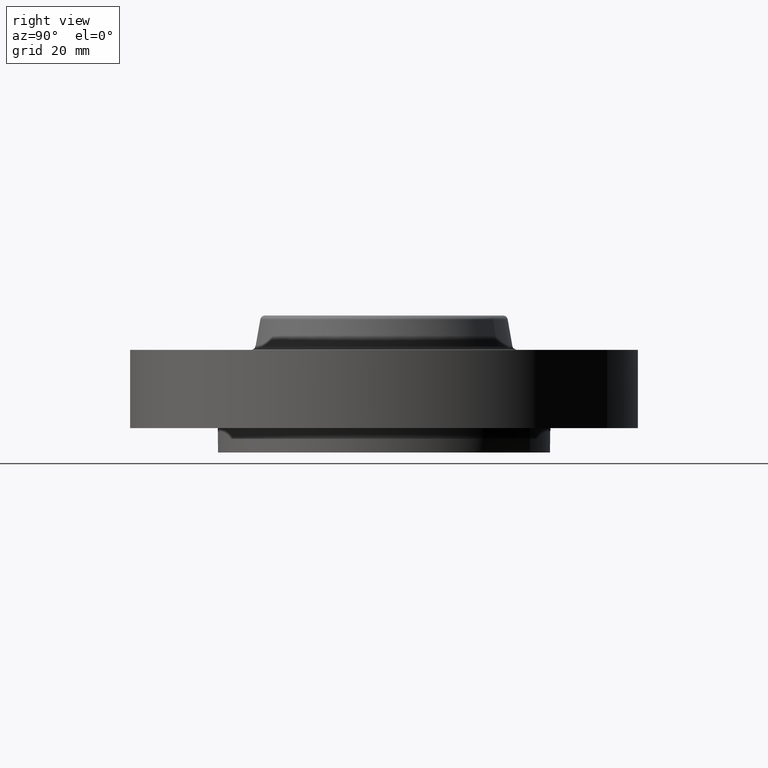
[diagram: clean part render]
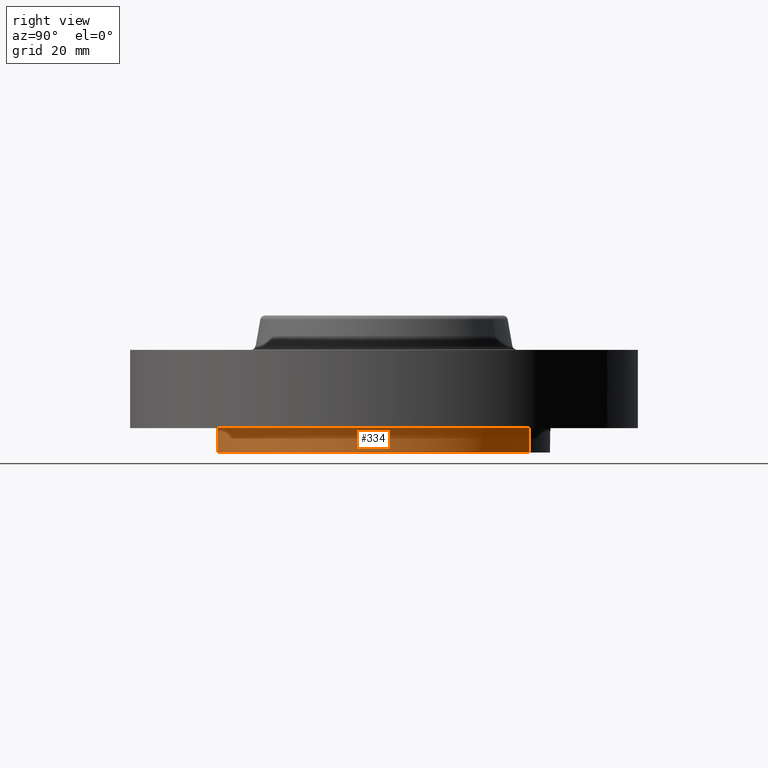
[diagram: same view with one face highlighted and labeled with its STEP entity id]
A machine part, right view. The second image highlights one B-rep face of the part: STEP entity #334.
In plain terms, the highlighted cylindrical surface (partial cylindrical patch) has radius 53.975 mm, axis along (0, 0, -1).
Its self-contained STEP definition (entity closure, byte-faithful):
#202=AXIS2_PLACEMENT_3D('Circle Axis2P3D',#200,#201,$) ;
#231=AXIS2_PLACEMENT_3D('Cylinder Axis2P3D',#228,#229,#230) ;
#293=AXIS2_PLACEMENT_3D('Circle Axis2P3D',#291,#292,$) ;
#300=AXIS2_PLACEMENT_3D('Circle Axis2P3D',#298,#299,$) ;
#307=AXIS2_PLACEMENT_3D('Circle Axis2P3D',#305,#306,$) ;
#314=AXIS2_PLACEMENT_3D('Circle Axis2P3D',#312,#313,$) ;
#321=AXIS2_PLACEMENT_3D('Circle Axis2P3D',#319,#320,$) ;
#195=CARTESIAN_POINT('Vertex',(-1.01877926954,-1.86486294402,-0.313000000001)) ;
#197=CARTESIAN_POINT('Vertex',(1.01877926954,1.86486294402,-0.313000000001)) ;
#200=CARTESIAN_POINT('Axis2P3D Location',(0.,0.,-0.313000000001)) ;
#228=CARTESIAN_POINT('Axis2P3D Location',(0.,0.,0.563500000002)) ;
#233=CARTESIAN_POINT('Line Origine',(-1.01877926954,-1.86486294402,-0.156500000001)) ;
#237=CARTESIAN_POINT('Vertex',(-1.01877926954,-1.86486294402,2.79741234551E-016)) ;
#272=CARTESIAN_POINT('Vertex',(1.01877926954,1.86486294402,2.79741234551E-016)) ;
#275=CARTESIAN_POINT('Line Origine',(1.01877926954,1.86486294402,-0.156500000001)) ;
#291=CARTESIAN_POINT('Axis2P3D Location',(0.,0.,2.79741234551E-016)) ;
#295=CARTESIAN_POINT('Vertex',(1.50260191003,1.50260191003,0.)) ;
#298=CARTESIAN_POINT('Axis2P3D Location',(0.,0.,2.79741234551E-016)) ;
#302=CARTESIAN_POINT('Vertex',(2.12500000001,-2.79741234551E-016,0.)) ;
#305=CARTESIAN_POINT('Axis2P3D Location',(0.,0.,2.79741234551E-016)) ;
#309=CARTESIAN_POINT('Vertex',(1.50260191003,-1.50260191003,0.)) ;
#312=CARTESIAN_POINT('Axis2P3D Location',(0.,0.,2.79741234551E-016)) ;
#316=CARTESIAN_POINT('Vertex',(2.72746669247E-017,-2.12500000001,0.)) ;
#319=CARTESIAN_POINT('Axis2P3D Location',(0.,0.,2.79741234551E-016)) ;
#201=DIRECTION('Axis2P3D Direction',(0.,0.,-0.0393700787402)) ;
#229=DIRECTION('Axis2P3D Direction',(0.,0.,-0.0393700787402)) ;
#230=DIRECTION('Axis2P3D XDirection',(0.0188750212049,0.0345504945626,0.)) ;
#234=DIRECTION('Vector Direction',(0.,0.,-0.0393700787402)) ;
#276=DIRECTION('Vector Direction',(0.,0.,-0.0393700787402)) ;
#292=DIRECTION('Axis2P3D Direction',(0.,0.,-0.0393700787402)) ;
#299=DIRECTION('Axis2P3D Direction',(0.,0.,-0.0393700787402)) ;
#306=DIRECTION('Axis2P3D Direction',(0.,0.,-0.0393700787402)) ;
#313=DIRECTION('Axis2P3D Direction',(0.,0.,-0.0393700787402)) ;
#320=DIRECTION('Axis2P3D Direction',(0.,0.,-0.0393700787402)) ;
#235=VECTOR('Line Direction',#234,0.0393700787402) ;
#277=VECTOR('Line Direction',#276,0.0393700787402) ;
#325=ORIENTED_EDGE('',*,*,#204,.F.) ;
#326=ORIENTED_EDGE('',*,*,#279,.T.) ;
#327=ORIENTED_EDGE('',*,*,#297,.T.) ;
#328=ORIENTED_EDGE('',*,*,#304,.T.) ;
#329=ORIENTED_EDGE('',*,*,#311,.T.) ;
#330=ORIENTED_EDGE('',*,*,#318,.T.) ;
#331=ORIENTED_EDGE('',*,*,#323,.T.) ;
#332=ORIENTED_EDGE('',*,*,#239,.F.) ;
#334=ADVANCED_FACE('PartBody',(#333),#232,.T.) ;
#203=CIRCLE('generated circle',#202,2.12500000001) ;
#294=CIRCLE('generated circle',#293,2.12500000001) ;
#301=CIRCLE('generated circle',#300,2.12500000001) ;
#308=CIRCLE('generated circle',#307,2.12500000001) ;
#315=CIRCLE('generated circle',#314,2.12500000001) ;
#322=CIRCLE('generated circle',#321,2.12500000001) ;
#232=CYLINDRICAL_SURFACE('generated cylinder',#231,2.12500000001) ;
#204=EDGE_CURVE('',#198,#196,#203,.T.) ;
#239=EDGE_CURVE('',#196,#238,#236,.F.) ;
#279=EDGE_CURVE('',#198,#273,#278,.F.) ;
#297=EDGE_CURVE('',#273,#296,#294,.T.) ;
#304=EDGE_CURVE('',#296,#303,#301,.T.) ;
#311=EDGE_CURVE('',#303,#310,#308,.T.) ;
#318=EDGE_CURVE('',#310,#317,#315,.T.) ;
#323=EDGE_CURVE('',#317,#238,#322,.T.) ;
#324=EDGE_LOOP('',(#325,#326,#327,#328,#329,#330,#331,#332)) ;
#333=FACE_OUTER_BOUND('',#324,.T.) ;
#236=LINE('Line',#233,#235) ;
#278=LINE('Line',#275,#277) ;
#196=VERTEX_POINT('',#195) ;
#198=VERTEX_POINT('',#197) ;
#238=VERTEX_POINT('',#237) ;
#273=VERTEX_POINT('',#272) ;
#296=VERTEX_POINT('',#295) ;
#303=VERTEX_POINT('',#302) ;
#310=VERTEX_POINT('',#309) ;
#317=VERTEX_POINT('',#316) ;